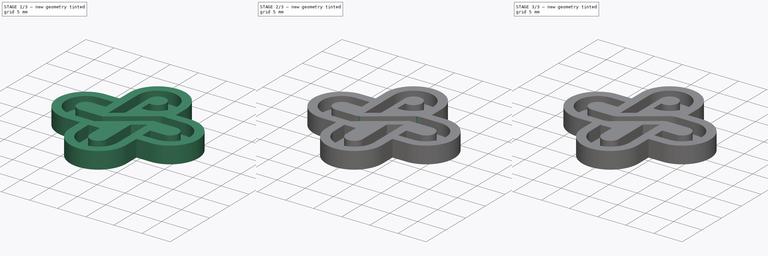
[diagram: build sequence overview — one tinted view per stage of 3, left to right]
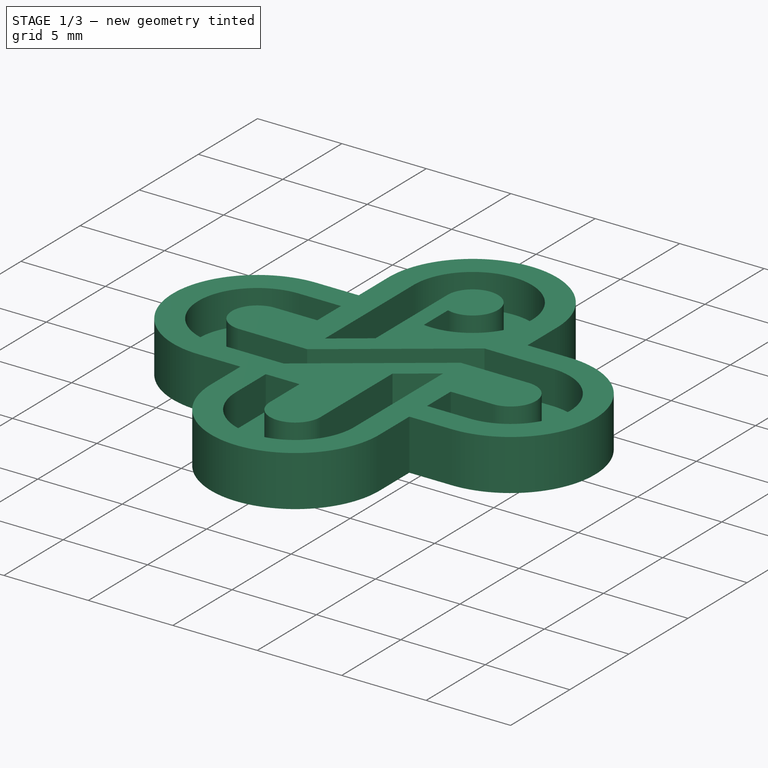
[diagram: stage 1 of 3 — iso view after this stage's code; geometry added in this stage tinted green]
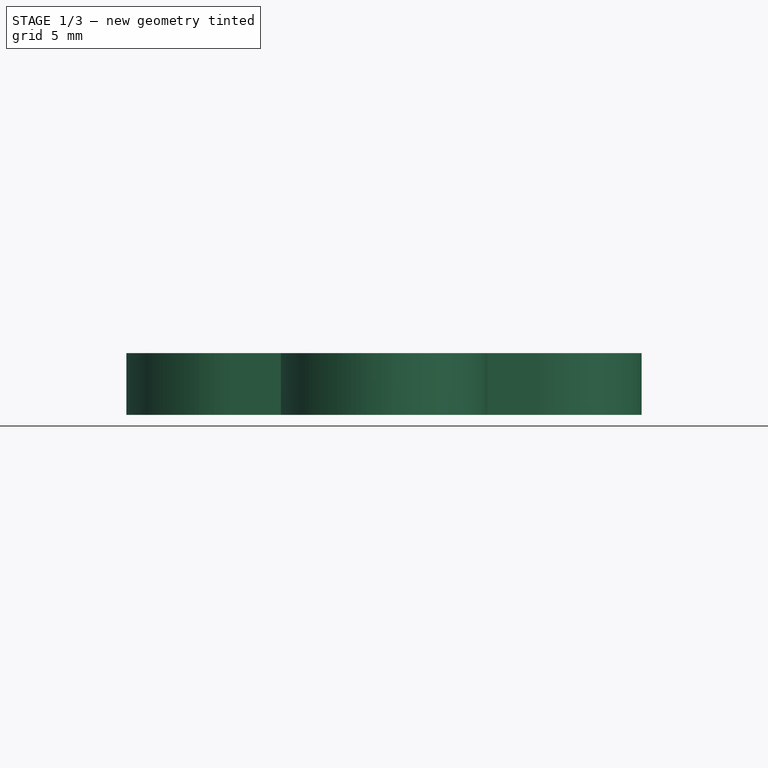
[diagram: stage 1 of 3 — front view after this stage's code; geometry added in this stage tinted green]
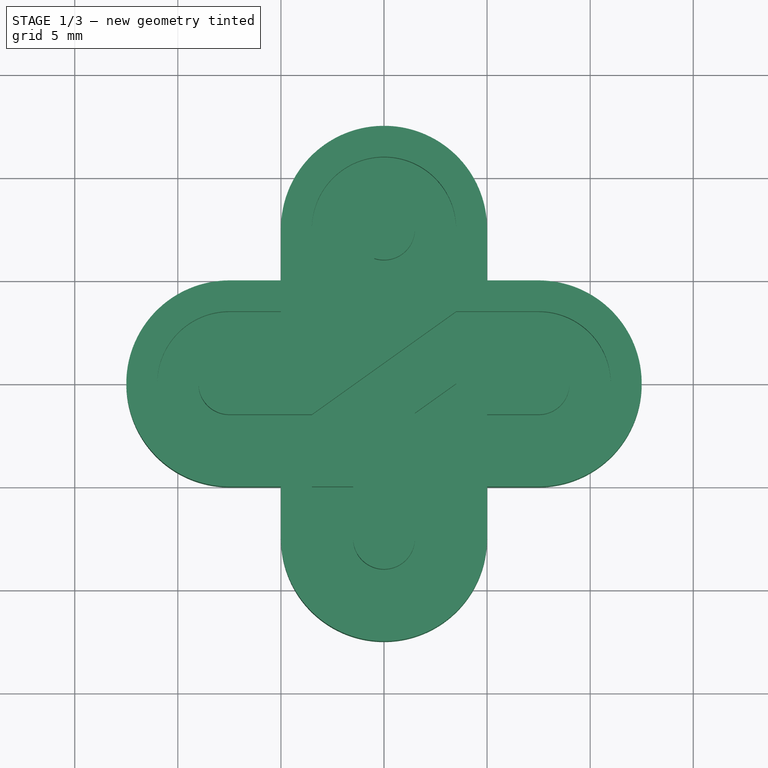
[diagram: stage 1 of 3 — top view after this stage's code; geometry added in this stage tinted green]
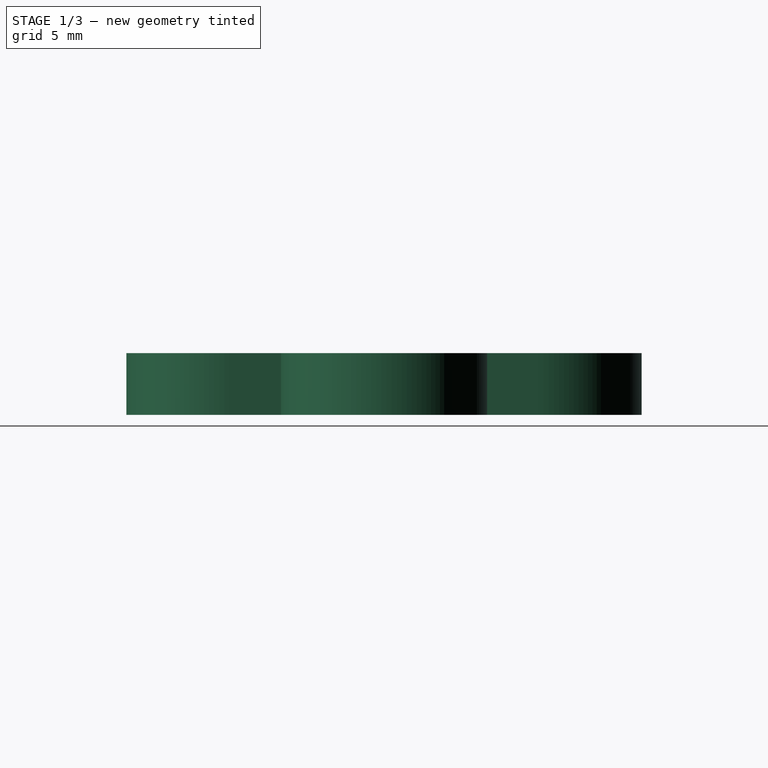
[diagram: stage 1 of 3 — right view after this stage's code; geometry added in this stage tinted green]
FCSTD DOCUMENT
Label: PSU-logo
objects: PartDesign::Fillet×4, Sketcher::SketchObject×2, PartDesign::Pad×1, PartDesign::Pocket×1
note: 10 computed .brp shape members not serialized (recipe doc carries the construction recipe); baked Part::Feature solids carry a one-line shape summary decoded from their .brp

FEATURE [Sketcher::SketchObject] Sketch
  sketch-geometry (14):
    g0: ArcOfCircle CenterX=0 CenterY=7.50002 CenterZ=0 NormalX=0 NormalY=0 NormalZ=1 Radius=5.00001 StartAngle=6.28318 EndAngle=9.42478
    g1: LineSegment StartX=-5.00001 StartY=7.50001 StartZ=0 EndX=-5.00001 EndY=5.00001 EndZ=0
    g2: LineSegment StartX=-5.00001 StartY=5.00001 StartZ=0 EndX=-7.50001 EndY=5.00001 EndZ=0
    g3: ArcOfCircle CenterX=-7.49999 CenterY=0 CenterZ=0 NormalX=0 NormalY=0 NormalZ=1 Radius=5.00001 StartAngle=1.5708 EndAngle=4.71239
    g4: LineSegment StartX=-7.50001 StartY=-5.00001 StartZ=0 EndX=-5.00001 EndY=-5.00001 EndZ=0
    g5: LineSegment StartX=-5.00001 StartY=-5.00001 StartZ=0 EndX=-5.00001 EndY=-7.50001 EndZ=0
    g6: ArcOfCircle CenterX=0 CenterY=-7.50001 CenterZ=0 NormalX=0 NormalY=0 NormalZ=1 Radius=5.00001 StartAngle=3.14159 EndAngle=6.28319
    g7: LineSegment StartX=5.00001 StartY=-7.50001 StartZ=0 EndX=5.00001 EndY=-5.00001 EndZ=0
    g8: LineSegment StartX=5.00001 StartY=-5.00001 StartZ=0 EndX=7.50001 EndY=-5.00001 EndZ=0
    g9: LineSegment StartX=5.00001 StartY=7.50001 StartZ=0 EndX=5.00001 EndY=5.00001 EndZ=0
    g10: LineSegment StartX=5.00001 StartY=5.00001 StartZ=0 EndX=7.50001 EndY=5.00001 EndZ=0
    g11: ArcOfCircle CenterX=7.5 CenterY=0 CenterZ=0 NormalX=0 NormalY=0 NormalZ=1 Radius=5.00001 StartAngle=4.71239 EndAngle=7.85398
    g12: GeomPoint [constr] X=12.5 Y=0 Z=0
    g13: GeomPoint [constr] X=-12.5 Y=0 Z=0
  constraints (44):
    c: PointOnObject(g0,g-2)
    c: Coincident(g1,g0)
    c: Vertical(g1)
    c: Coincident(g2,g1)
    c: Horizontal(g2)
    c: PointOnObject(g3,g-1)
    c: Coincident(g4,g3)
    c: Horizontal(g4)
    c: Coincident(g5,g4)
    c: Vertical(g5)
    c: PointOnObject(g6,g-2)
    c: Coincident(g6,g5)
    c: Coincident(g7,g6)
    c: Vertical(g7)
    c: Coincident(g8,g7)
    c: Horizontal(g8)
    c: Vertical(g9)
    c: Coincident(g10,g9)
    c: Horizontal(g10)
    c: PointOnObject(g11,g-1)
    c: Coincident(g0,g9)
    c: Coincident(g10,g11)
    c: Coincident(g8,g11)
    c: Coincident(g2,g3)
    c: Equal(g1,g2)
    c: Equal(g2,g9)
    c: Equal(g9,g10)
    c: Equal(g10,g8)
    c: Equal(g8,g7)
    c: Equal(g7,g4)
    c: Equal(g4,g5)
    c: Equal(g0,g11)
    c: Equal(g11,g6)
    c: Equal(g6,g3)
    c: Tangent(g1,g0)
    c: Tangent(g10,g11)
    c: Tangent(g7,g6)
    c: Tangent(g4,g3)
    c: PointOnObject(g12,g11)
    c: PointOnObject(g12,g-1)
    c: PointOnObject(g13,g3)
    c: PointOnObject(g13,g-1)
    c: DistanceX(g13,g12) = 25
    c: Distance(g2) = 2.5
FEATURE [PartDesign::Pad] Pad
  Length = 3
  Length2 = 100
  Sketch = -> Sketch
  Type = 0
FEATURE [Sketcher::SketchObject] Sketch001
  ExternalGeometry = -> [Pad]
  Placement = pos=(0,0,3) rot=(0,0,1;0rad)
  Support = -> Pad [Face14]
  sketch-geometry (42):
    g0: ArcOfCircle CenterX=-7.49999 CenterY=0 CenterZ=0 NormalX=0 NormalY=0 NormalZ=1 Radius=3.50001 StartAngle=1.5708 EndAngle=4.71238
    g1: LineSegment StartX=-7.50001 StartY=-3.50001 StartZ=0 EndX=-3.50001 EndY=-3.50001 EndZ=0
    g2: LineSegment StartX=-3.50001 StartY=-3.50001 StartZ=0 EndX=3.50001 EndY=1.50001 EndZ=0
    g3: LineSegment StartX=3.50001 StartY=1.50001 StartZ=0 EndX=7.50001 EndY=1.50001 EndZ=0
    g4: ArcOfCircle CenterX=7.5 CenterY=0 CenterZ=0 NormalX=0 NormalY=0 NormalZ=1 Radius=1.50001 StartAngle=4.71238 EndAngle=7.85397
    g5: LineSegment StartX=7.49999 StartY=-1.50001 StartZ=0 EndX=5.00001 EndY=-1.50001 EndZ=0
    g6: LineSegment StartX=5.00001 StartY=-1.50001 StartZ=0 EndX=5.00001 EndY=-3.50001 EndZ=0
    g7: LineSegment StartX=5.00001 StartY=-3.50001 StartZ=0 EndX=7.49999 EndY=-3.50001 EndZ=0
    g8: ArcOfCircle CenterX=7.5 CenterY=0 CenterZ=0 NormalX=0 NormalY=0 NormalZ=1 Radius=3.50001 StartAngle=4.71239 EndAngle=7.85398
    g9: LineSegment StartX=7.50001 StartY=3.50001 StartZ=0 EndX=3.50001 EndY=3.50001 EndZ=0
    g10: LineSegment StartX=3.50001 StartY=3.50001 StartZ=0 EndX=-3.50001 EndY=-1.50001 EndZ=0
    g11: LineSegment StartX=-3.50001 StartY=-1.50001 StartZ=0 EndX=-7.50001 EndY=-1.50001 EndZ=0
    g12: ArcOfCircle CenterX=-7.49999 CenterY=0 CenterZ=0 NormalX=0 NormalY=0 NormalZ=1 Radius=1.50001 StartAngle=1.57081 EndAngle=4.71238
    g13: LineSegment StartX=-7.50001 StartY=3.50001 StartZ=0 EndX=-5.00001 EndY=3.50001 EndZ=0
    g14: LineSegment StartX=-7.50001 StartY=1.50001 StartZ=0 EndX=-5.00001 EndY=1.50001 EndZ=0
    g15: LineSegment StartX=-5.00001 StartY=3.50001 StartZ=0 EndX=-5.00001 EndY=1.50001 EndZ=0
    g16: LineSegment [constr] StartX=-7.50001 StartY=-1.50001 StartZ=0 EndX=-7.50001 EndY=-3.50001 EndZ=0
    g17: LineSegment [constr] StartX=7.50001 StartY=1.50001 StartZ=0 EndX=7.50001 EndY=3.50001 EndZ=0
    g18: LineSegment StartX=-3.50001 StartY=-5.00001 StartZ=0 EndX=-3.50001 EndY=-7.50001 EndZ=0
    g19: ArcOfCircle CenterX=0 CenterY=-7.50001 CenterZ=0 NormalX=0 NormalY=0 NormalZ=1 Radius=3.50001 StartAngle=3.14159 EndAngle=6.28319
    g20: LineSegment StartX=3.50001 StartY=-7.50001 StartZ=0 EndX=3.50001 EndY=0 EndZ=0
    g21: LineSegment StartX=3.50001 StartY=0 StartZ=0 EndX=1.50001 EndY=-1.42857 EndZ=0
    g22: LineSegment StartX=1.50001 StartY=-1.42857 StartZ=0 EndX=1.50001 EndY=-7.50001 EndZ=0
    g23: ArcOfCircle CenterX=0 CenterY=-7.50001 CenterZ=0 NormalX=0 NormalY=0 NormalZ=1 Radius=1.50001 StartAngle=3.14159 EndAngle=6.28319
    g24: LineSegment StartX=-1.50001 StartY=-7.50001 StartZ=0 EndX=-1.50001 EndY=-5.00001 EndZ=0
    g25: LineSegment StartX=-3.50001 StartY=-5.00001 StartZ=0 EndX=-1.50001 EndY=-5.00001 EndZ=0
    g26: LineSegment [constr] StartX=-5.00001 StartY=-7.50001 StartZ=0 EndX=5.00001 EndY=-7.50001 EndZ=0
    g27: ArcOfCircle CenterX=0 CenterY=7.50002 CenterZ=0 NormalX=0 NormalY=0 NormalZ=1 Radius=3.50001 StartAngle=4.5794 EndAngle=9.42478
    g28: LineSegment StartX=-3.50001 StartY=7.50001 StartZ=0 EndX=-3.50001 EndY=0 EndZ=0
    g29: LineSegment StartX=-3.50001 StartY=0 StartZ=0 EndX=-1.50001 EndY=1.42857 EndZ=0
    g30: LineSegment StartX=-1.50001 StartY=1.42857 StartZ=0 EndX=-1.50001 EndY=7.50001 EndZ=0
    g31: ArcOfCircle CenterX=0 CenterY=7.50002 CenterZ=0 NormalX=0 NormalY=0 NormalZ=1 Radius=1.50001 StartAngle=4.39783 EndAngle=9.42478
    g32: LineSegment [constr] StartX=-3.50001 StartY=7.50001 StartZ=0 EndX=-1.50001 EndY=7.50001 EndZ=0
    g33: LineSegment [constr] StartX=0 StartY=7.50002 StartZ=0 EndX=-5.00001 EndY=7.50001 EndZ=0
    g34: LineSegment StartX=-0.464101 StartY=6.07361 StartZ=0 EndX=-0.464101 EndY=4.03092 EndZ=0
    g35: LineSegment [constr] StartX=7.50001 StartY=5.00001 StartZ=0 EndX=7.50001 EndY=-5.00001 EndZ=0
    g36: LineSegment [constr] StartX=-7.50001 StartY=-5.00001 StartZ=0 EndX=7.50001 EndY=-5.00001 EndZ=0
    g37: LineSegment [constr] StartX=3.50001 StartY=0 StartZ=0 EndX=3.50001 EndY=7.50002 EndZ=0
    g38: LineSegment [constr] StartX=-3.50001 StartY=0 StartZ=0 EndX=-3.50001 EndY=-5.00001 EndZ=0
    g39: LineSegment [constr] StartX=-5.00001 StartY=5.00001 StartZ=0 EndX=-5.00001 EndY=-7.50001 EndZ=0
    g40: LineSegment [constr] StartX=-7.50001 StartY=5.00001 StartZ=0 EndX=-7.50001 EndY=-5.00001 EndZ=0
    g41: LineSegment [constr] StartX=5.00001 StartY=7.50001 StartZ=0 EndX=5.00001 EndY=-7.50001 EndZ=0
  constraints (116):
    c: PointOnObject(g0,g-1)
    c: Coincident(g1,g0)
    c: Horizontal(g1)
    c: Coincident(g2,g1)
    c: Coincident(g3,g2)
    c: Horizontal(g3)
    c: Coincident(g4,g3)
    c: Coincident(g5,g4)
    c: Horizontal(g5)
    c: Coincident(g6,g5)
    c: Vertical(g6)
    c: Coincident(g7,g6)
    c: Horizontal(g7)
    c: PointOnObject(g8,g-1)
    c: Coincident(g8,g7)
    c: Coincident(g8,g4)
    c: Coincident(g4,g-3)
    c: Equal(g7,g5)
    c: Coincident(g9,g8)
    c: Horizontal(g9)
    c: Coincident(g10,g9)
    c: Coincident(g11,g10)
    c: Horizontal(g11)
    c: Coincident(g-4,g0)
    c: Coincident(g11,g12)
    c: Coincident(g12,g0)
    c: Horizontal(g13)
    c: Coincident(g0,g13)
    c: Coincident(g12,g14)
    c: Horizontal(g14)
    c: Vertical(g15)
    c: Coincident(g13,g15)
    c: Coincident(g14,g15)
    c: Equal(g14,g13)
    c: Coincident(g16,g11)
    c: Coincident(g16,g0)
    c: Vertical(g16)
    c: Coincident(g17,g3)
    c: Coincident(g17,g8)
    c: Vertical(g17)
    c: Equal(g15,g16)
    c: Equal(g16,g17)
    c: Equal(g17,g6)
    c: Vertical(g18)
    c: PointOnObject(g19,g-2)
    c: Coincident(g19,g18)
    c: Coincident(g19,g-6)
    c: Coincident(g20,g19)
    c: Vertical(g20)
    c: Coincident(g21,g20)
    c: Coincident(g21,g22)
    c: Vertical(g22)
    c: Coincident(g23,g19)
    c: Coincident(g23,g22)
    c: Vertical(g24)
    c: Coincident(g18,g25)
    c: Coincident(g24,g25)
    c: Horizontal(g25)
    c: Coincident(g26,g-6)
    c: Coincident(g26,g-6)
    c: PointOnObject(g19,g26)
    c: PointOnObject(g22,g26)
    c: PointOnObject(g23,g26)
    c: Coincident(g24,g23)
    c: PointOnObject(g18,g26)
    c: Equal(g25,g6)
    c: Coincident(g27,g-7)
    c: Coincident(g28,g27)
    c: Vertical(g28)
    c: Coincident(g28,g29)
    c: Coincident(g29,g30)
    c: Vertical(g30)
    c: Coincident(g31,g27)
    c: Coincident(g30,g31)
    c: Coincident(g32,g27)
    c: Coincident(g30,g32)
    c: Equal(g32,g17)
    c: Coincident(g27,g33)
    c: Coincident(g33,g-7)
    c: PointOnObject(g30,g33)
    c: PointOnObject(g27,g33)
    c: Coincident(g34,g27)
    c: Coincident(g34,g31)
    c: Vertical(g34)
    c: DistanceY(g13,g-5) = 1.5
    c: Coincident(g-3,g35)
    c: Coincident(g35,g-3)
    c: PointOnObject(g8,g35)
    c: Distance(g15) = 2
    c: Coincident(g36,g35)
    c: Coincident(g36,g-4)
    c: PointOnObject(g18,g36)
    c: DistanceX(g18,g26) = -1.5
    c: PointOnObject(g37,g27)
    c: Vertical(g37)
    c: Coincident(g37,g20)
    c: PointOnObject(g2,g37)
    c: PointOnObject(g9,g37)
    c: Coincident(g18,g38)
    c: Coincident(g38,g28)
    c: PointOnObject(g10,g38)
    c: PointOnObject(g1,g38)
    c: PointOnObject(g28,g-1)
    c: PointOnObject(g20,g-1)
    c: Parallel(g21,g2)
    c: Parallel(g29,g10)
    c: DistanceY(g7,g35) = -1.5
    c: Coincident(g39,g26)
    c: Coincident(g39,g-5)
    c: PointOnObject(g13,g39)
    c: Coincident(g40,g36)
    c: Coincident(g40,g-4)
    c: PointOnObject(g0,g40)
    c: Coincident(g41,g26)
    c: Coincident(g41,g-7)
    c: PointOnObject(g5,g41)
FEATURE [PartDesign::Pocket] Pocket
  Length = 2
  Sketch = -> Sketch001
  Type = 0
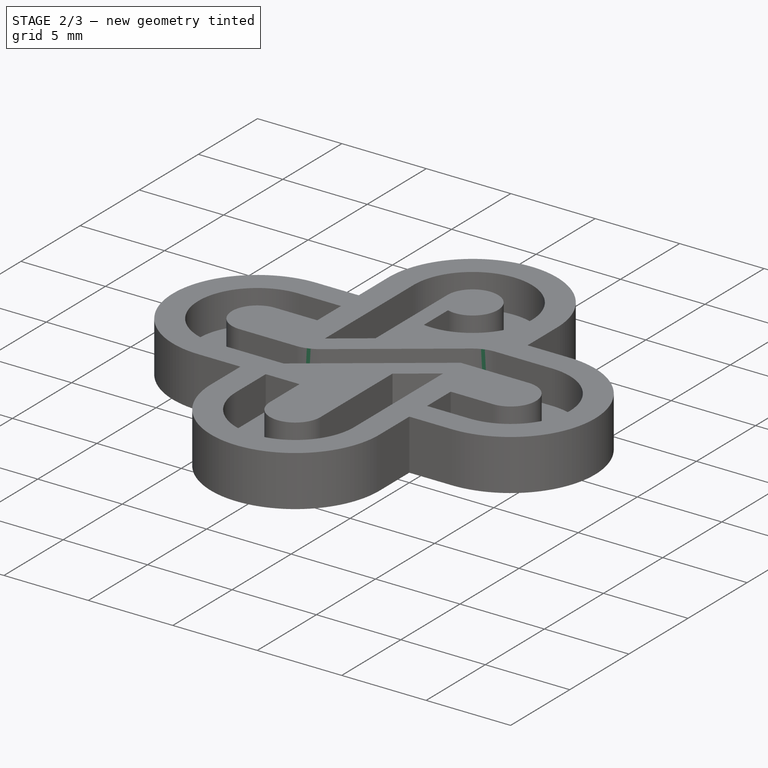
[diagram: stage 2 of 3 — iso view after this stage's code; geometry added in this stage tinted green]
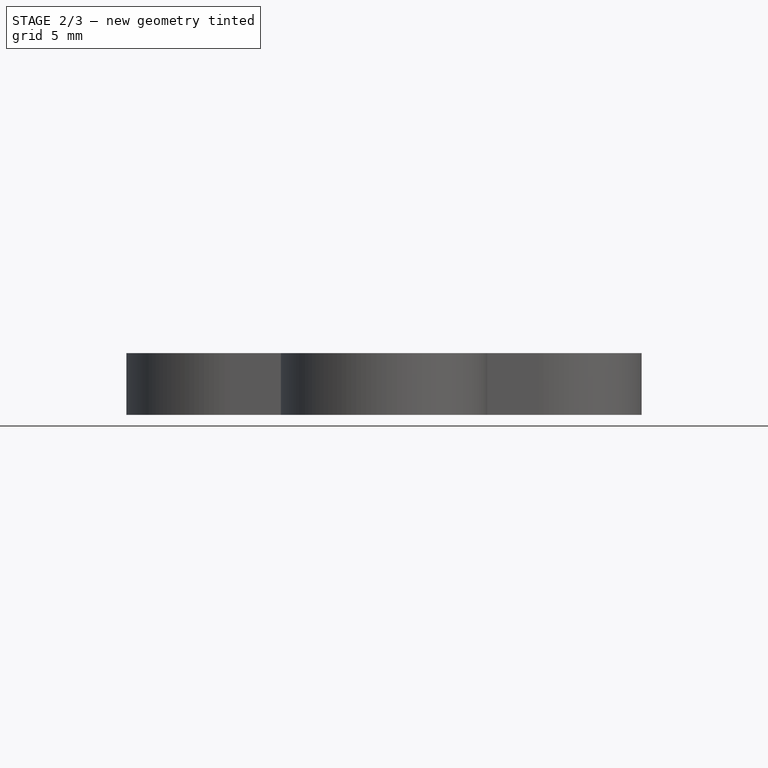
[diagram: stage 2 of 3 — front view after this stage's code; geometry added in this stage tinted green]
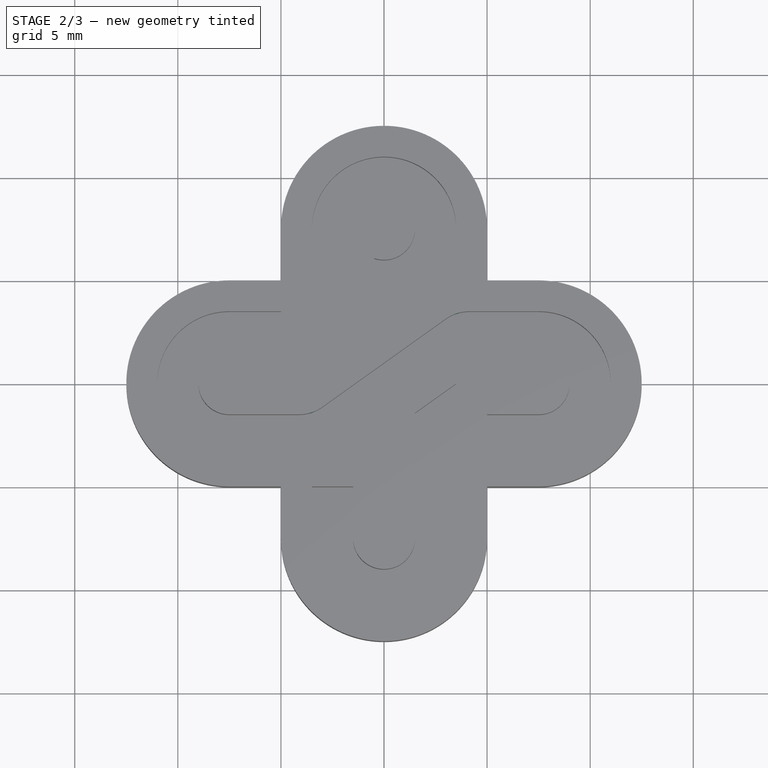
[diagram: stage 2 of 3 — top view after this stage's code; geometry added in this stage tinted green]
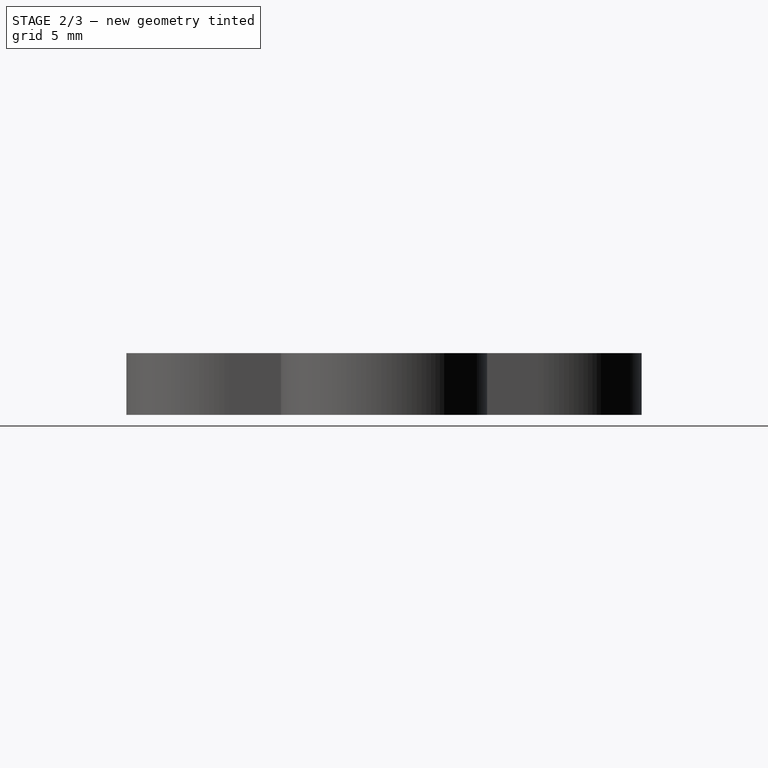
[diagram: stage 2 of 3 — right view after this stage's code; geometry added in this stage tinted green]
FEATURE [PartDesign::Fillet] Fillet
  Base = -> Pocket [Edge78]
  Radius = 2
FEATURE [PartDesign::Fillet] Fillet001
  Base = -> Fillet [Edge45]
  Radius = 2
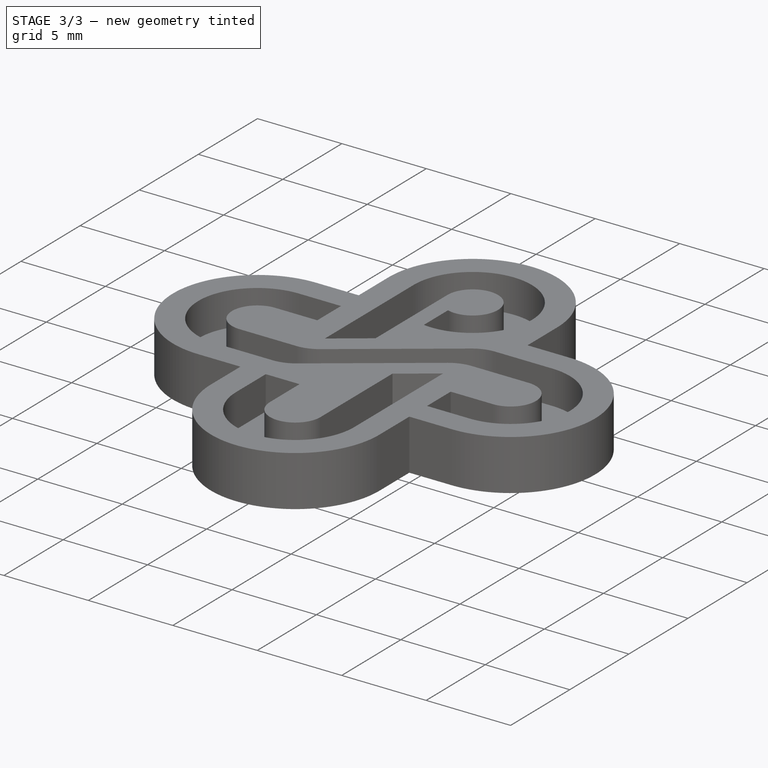
[diagram: stage 3 of 3 — iso view after this stage's code; geometry added in this stage tinted green]
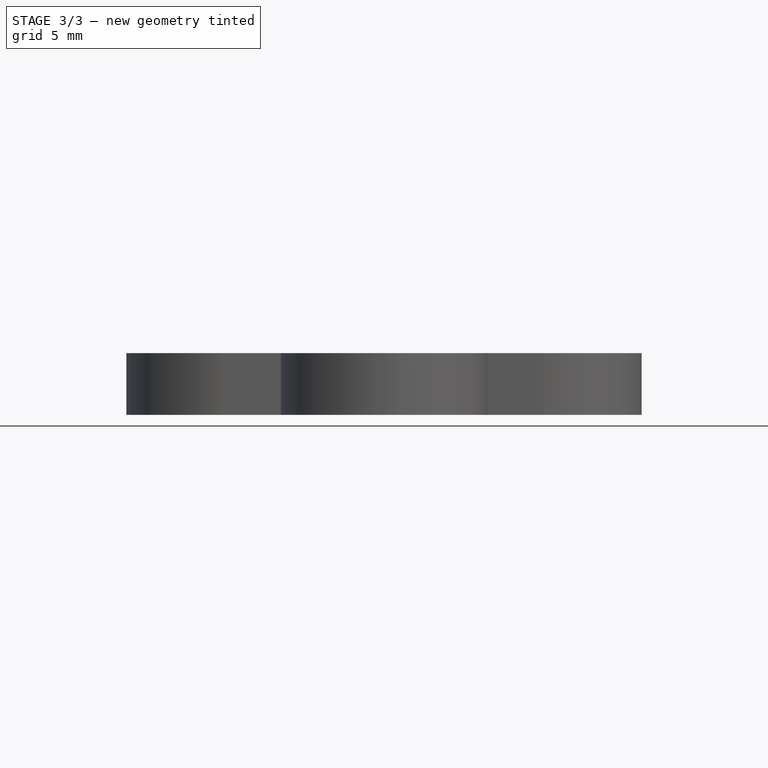
[diagram: stage 3 of 3 — front view after this stage's code; geometry added in this stage tinted green]
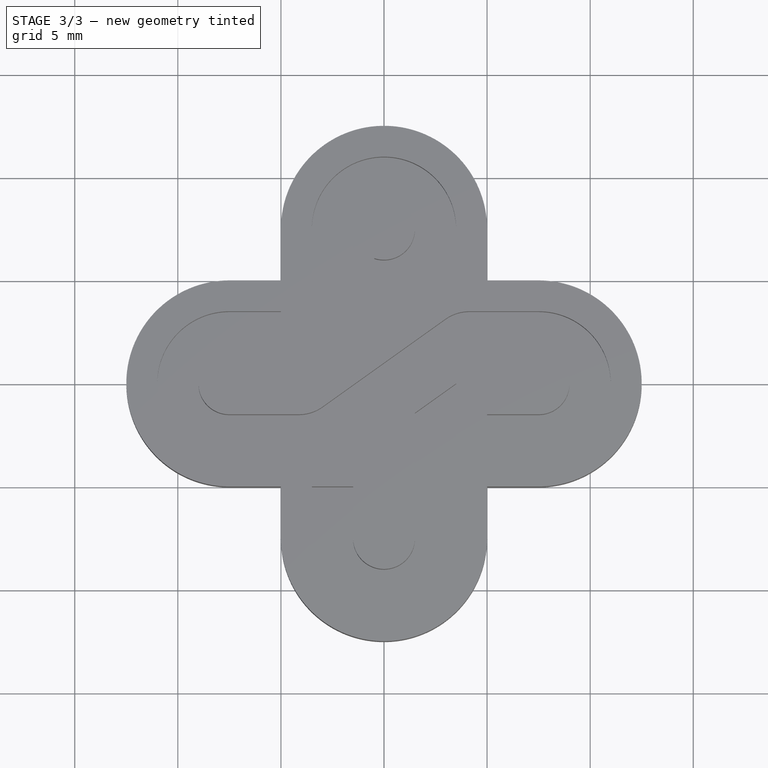
[diagram: stage 3 of 3 — top view after this stage's code; geometry added in this stage tinted green]
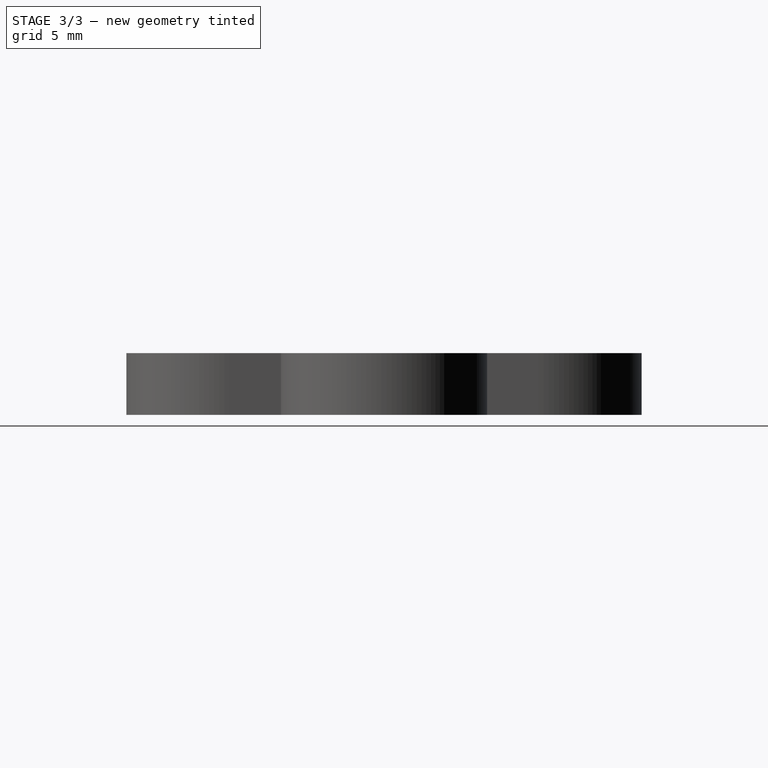
[diagram: stage 3 of 3 — right view after this stage's code; geometry added in this stage tinted green]
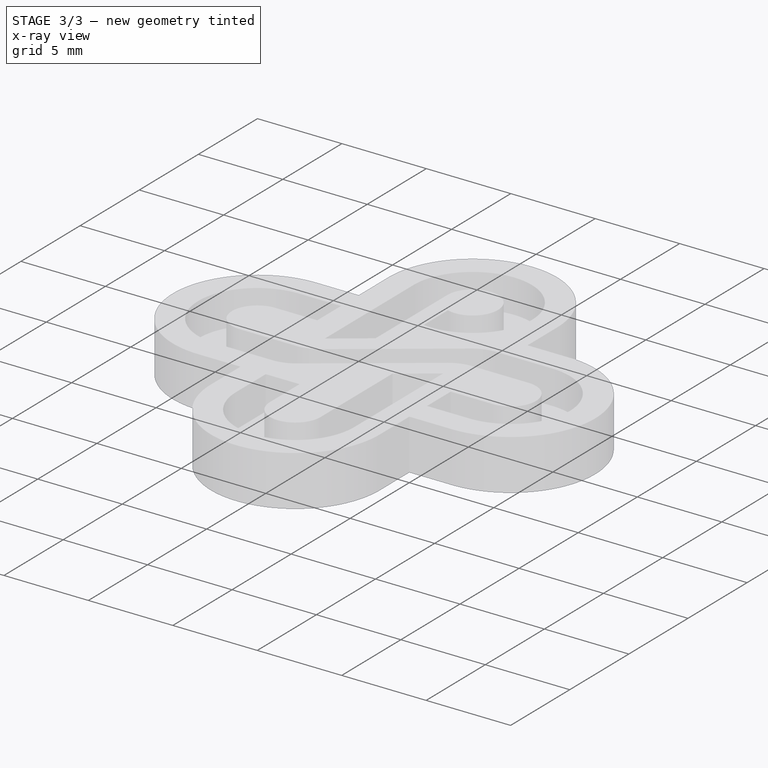
[diagram: stage 3 of 3 — x-ray composite at the iso view; earlier geometry ghosted, this stage's added geometry solid]
FEATURE [PartDesign::Fillet] Fillet002
  Base = -> Fillet001 [Edge78]
  Radius = 2
FEATURE [PartDesign::Fillet] Fillet003
  Base = -> Fillet002 [Edge53]
  Radius = 2
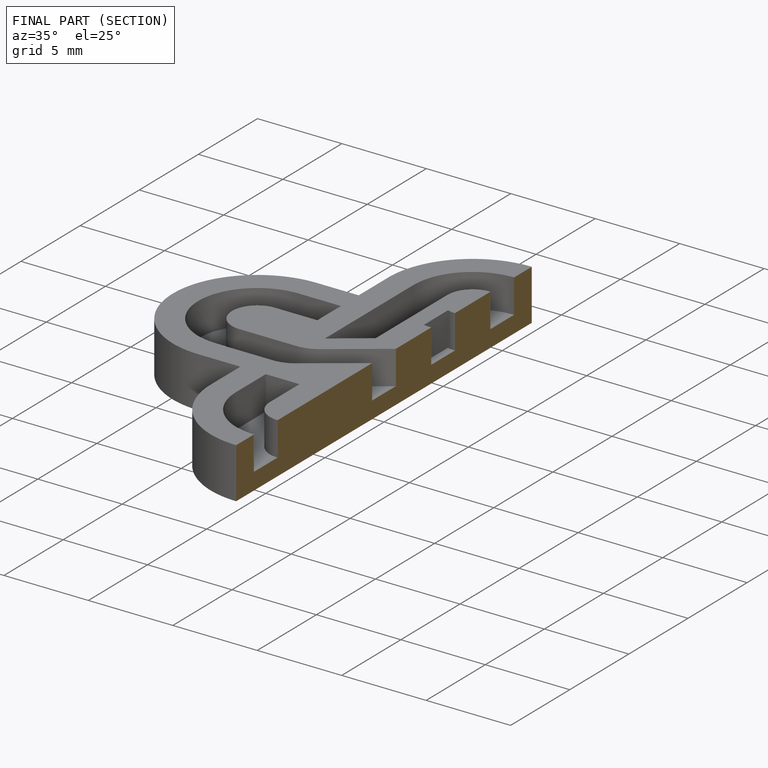
[diagram: finished part — half-section view (interior)]
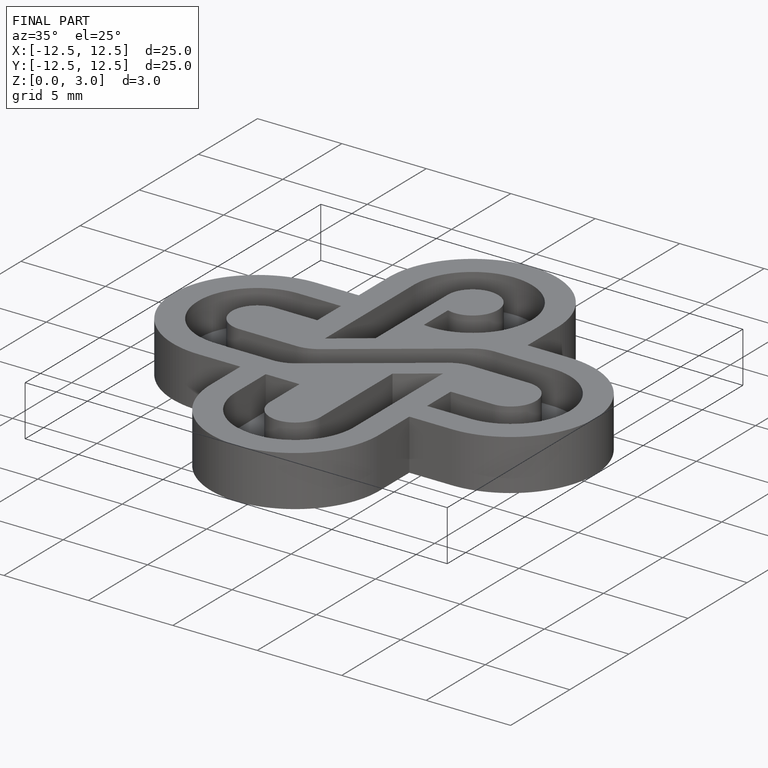
[diagram: finished part — iso view with bounding-box wireframe]
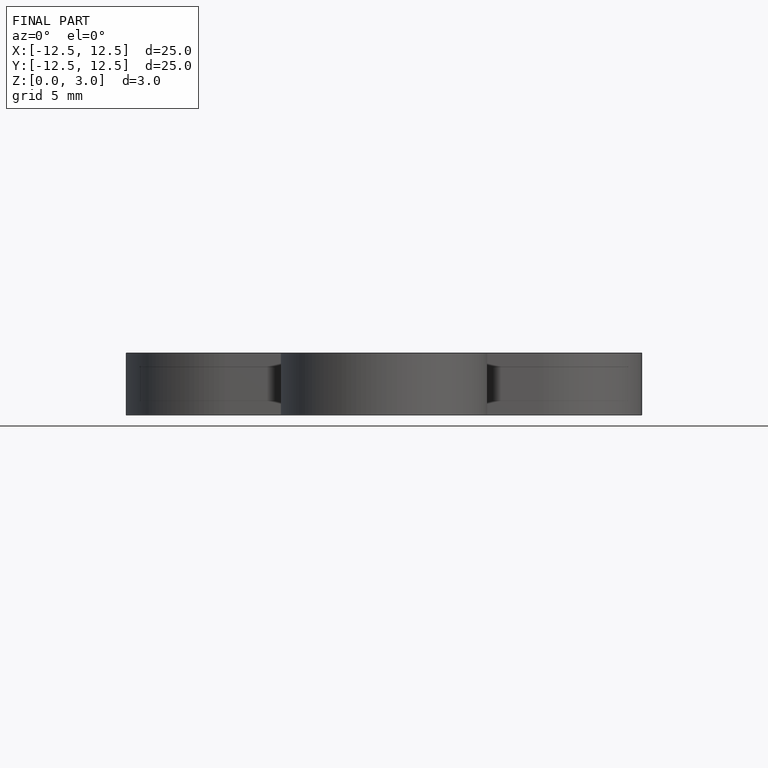
[diagram: finished part — front view with bounding-box wireframe]
